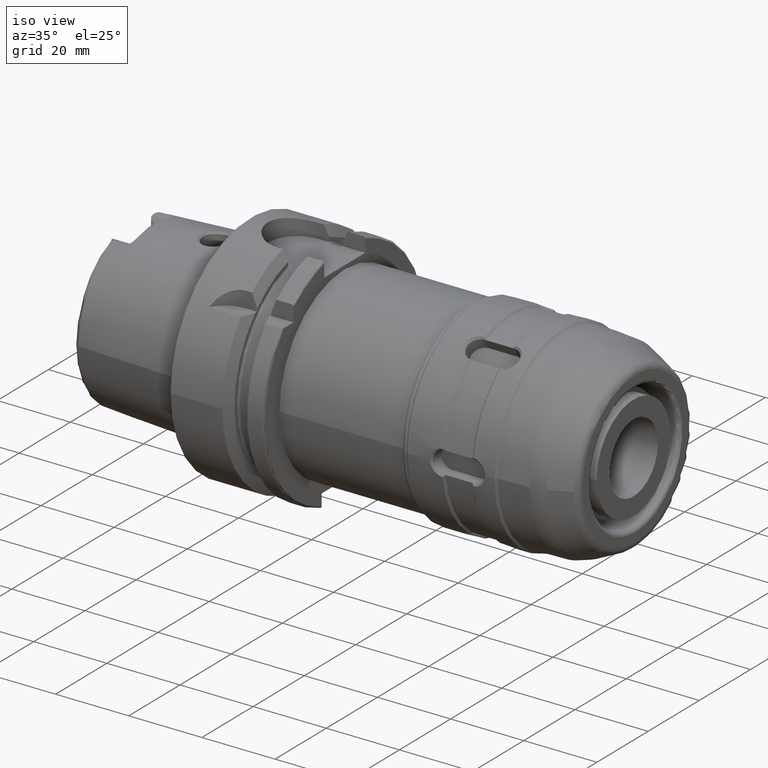
[diagram: clean part render]
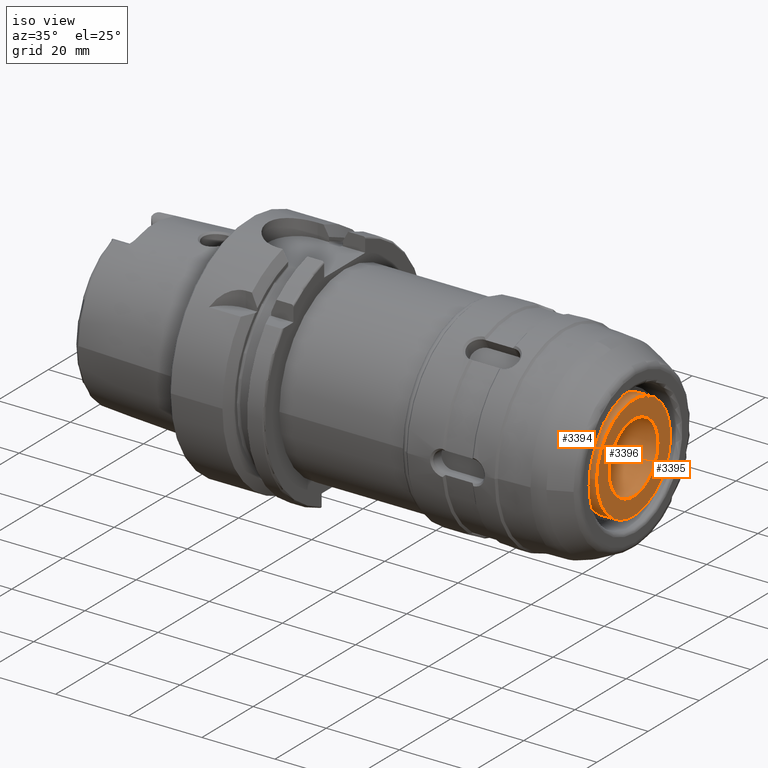
[diagram: same view with one multi-face feature highlighted, each face labeled with its STEP entity id]
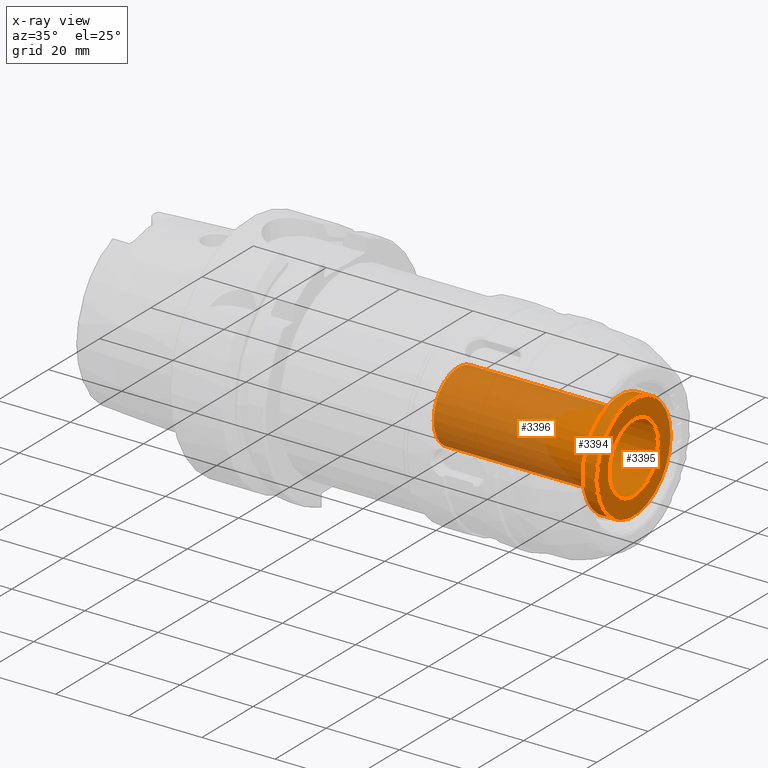
[diagram: x-ray of the same camera — body ghosted, the whole feature saturated]
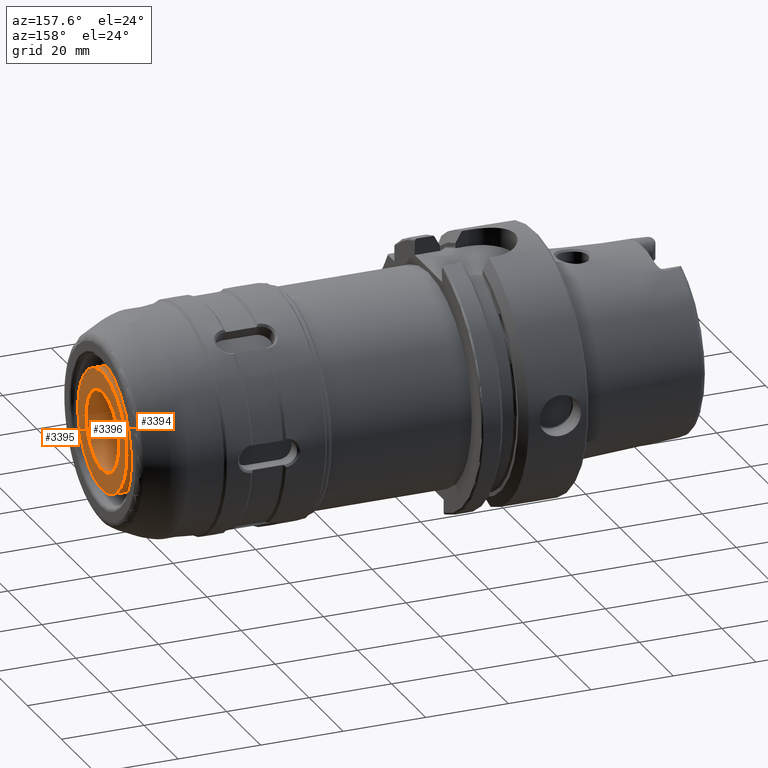
[diagram: same view with one multi-face feature highlighted, each face labeled with its STEP entity id]
A machine part, iso view. The highlighted faces form ONE feature: a stepped (counterbored) hole: 2 coaxial cylindrical walls of radii 9.525 -> 14.45 mm joined by 1 annular planar shoulder face(s). The faces share edges in the B-rep.
The next image is the same camera in x-ray: the body ghosted and the whole hole feature saturated, so the bore chain is visible through the body.
A second angle (auxiliary view) of the same feature is appended — it is thin or edge-on in the first view.
Their STEP definitions:
[1] entity #3394 (Cylinder):
#366=FACE_OUTER_BOUND('',#573,.T.);
#573=EDGE_LOOP('',(#2264,#2265,#2266,#2267));
#792=LINE('',#5073,#973);
#973=VECTOR('',#4106,14.45);
#1158=CIRCLE('',#3681,14.45);
#1159=CIRCLE('',#3683,14.45);
#1353=VERTEX_POINT('',#5068);
#1354=VERTEX_POINT('',#5071);
#1712=EDGE_CURVE('',#1353,#1353,#1158,.T.);
#1713=EDGE_CURVE('',#1354,#1354,#1159,.T.);
#1714=EDGE_CURVE('',#1354,#1353,#792,.T.);
#2264=ORIENTED_EDGE('',*,*,#1713,.F.);
#2265=ORIENTED_EDGE('',*,*,#1714,.T.);
#2266=ORIENTED_EDGE('',*,*,#1712,.T.);
#2267=ORIENTED_EDGE('',*,*,#1714,.F.);
#3329=CYLINDRICAL_SURFACE('',#3682,14.45);
#3394=ADVANCED_FACE('',(#366),#3329,.T.);
#3681=AXIS2_PLACEMENT_3D('',#5069,#4100,#4101);
#3682=AXIS2_PLACEMENT_3D('',#5070,#4102,#4103);
#3683=AXIS2_PLACEMENT_3D('',#5072,#4104,#4105);
#4100=DIRECTION('center_axis',(1.,0.,0.));
#4101=DIRECTION('ref_axis',(0.,0.,-1.));
#4102=DIRECTION('center_axis',(1.,0.,0.));
#4103=DIRECTION('ref_axis',(0.,1.,0.));
#4104=DIRECTION('center_axis',(1.,0.,0.));
#4105=DIRECTION('ref_axis',(0.,0.,-1.));
#4106=DIRECTION('',(-1.,0.,0.));
#5068=CARTESIAN_POINT('',(101.2,-14.45,-1.76961462476793E-15));
#5069=CARTESIAN_POINT('Origin',(101.2,0.,0.));
#5070=CARTESIAN_POINT('Origin',(103.1,0.,0.));
#5071=CARTESIAN_POINT('',(105.,-14.45,-1.76961462476793E-15));
#5072=CARTESIAN_POINT('Origin',(105.,0.,0.));
#5073=CARTESIAN_POINT('',(103.1,-14.45,-1.76961462476793E-15));
[2] entity #3396 (Cylinder):
#368=FACE_OUTER_BOUND('',#576,.T.);
#576=EDGE_LOOP('',(#2270,#2271,#2272,#2273));
#793=LINE('',#5079,#974);
#974=VECTOR('',#4113,9.525);
#1160=CIRCLE('',#3685,9.52500000000001);
#1161=CIRCLE('',#3687,9.525);
#1355=VERTEX_POINT('',#5075);
#1356=VERTEX_POINT('',#5078);
#1715=EDGE_CURVE('',#1355,#1355,#1160,.T.);
#1716=EDGE_CURVE('',#1355,#1356,#793,.T.);
#1717=EDGE_CURVE('',#1356,#1356,#1161,.T.);
#2270=ORIENTED_EDGE('',*,*,#1715,.T.);
#2271=ORIENTED_EDGE('',*,*,#1716,.T.);
#2272=ORIENTED_EDGE('',*,*,#1717,.F.);
#2273=ORIENTED_EDGE('',*,*,#1716,.F.);
#3330=CYLINDRICAL_SURFACE('',#3686,9.525);
#3396=ADVANCED_FACE('',(#368),#3330,.F.);
#3685=AXIS2_PLACEMENT_3D('',#5076,#4109,#4110);
#3686=AXIS2_PLACEMENT_3D('',#5077,#4111,#4112);
#3687=AXIS2_PLACEMENT_3D('',#5080,#4114,#4115);
#4109=DIRECTION('center_axis',(1.,0.,0.));
#4110=DIRECTION('ref_axis',(0.,0.,-1.));
#4111=DIRECTION('center_axis',(1.,0.,0.));
#4112=DIRECTION('ref_axis',(0.,1.,0.));
#4113=DIRECTION('',(-1.,0.,0.));
#4114=DIRECTION('center_axis',(1.,0.,0.));
#4115=DIRECTION('ref_axis',(0.,0.,-1.));
#5075=CARTESIAN_POINT('',(105.,-9.525,-1.16647607618785E-15));
#5076=CARTESIAN_POINT('Origin',(105.,0.,0.));
#5077=CARTESIAN_POINT('Origin',(81.,0.,0.));
#5078=CARTESIAN_POINT('',(57.,-9.525,-1.16647607618785E-15));
#5079=CARTESIAN_POINT('',(81.,-9.525,-1.16647607618785E-15));
#5080=CARTESIAN_POINT('Origin',(57.,0.,0.));
[3] entity #3395 (Plane):
#271=FACE_BOUND('',#575,.T.);
#292=PLANE('',#3684);
#367=FACE_OUTER_BOUND('',#574,.T.);
#574=EDGE_LOOP('',(#2268));
#575=EDGE_LOOP('',(#2269));
#1159=CIRCLE('',#3683,14.45);
#1160=CIRCLE('',#3685,9.52500000000001);
#1354=VERTEX_POINT('',#5071);
#1355=VERTEX_POINT('',#5075);
#1713=EDGE_CURVE('',#1354,#1354,#1159,.T.);
#1715=EDGE_CURVE('',#1355,#1355,#1160,.T.);
#2268=ORIENTED_EDGE('',*,*,#1713,.T.);
#2269=ORIENTED_EDGE('',*,*,#1715,.F.);
#3395=ADVANCED_FACE('',(#367,#271),#292,.T.);
#3683=AXIS2_PLACEMENT_3D('',#5072,#4104,#4105);
#3684=AXIS2_PLACEMENT_3D('',#5074,#4107,#4108);
#3685=AXIS2_PLACEMENT_3D('',#5076,#4109,#4110);
#4104=DIRECTION('center_axis',(1.,0.,0.));
#4105=DIRECTION('ref_axis',(0.,0.,-1.));
#4107=DIRECTION('center_axis',(1.,0.,0.));
#4108=DIRECTION('ref_axis',(0.,0.,-1.));
#4109=DIRECTION('center_axis',(1.,0.,0.));
#4110=DIRECTION('ref_axis',(0.,0.,-1.));
#5071=CARTESIAN_POINT('',(105.,-14.45,-1.76961462476793E-15));
#5072=CARTESIAN_POINT('Origin',(105.,0.,0.));
#5074=CARTESIAN_POINT('Origin',(105.,9.52500000000001,0.));
#5075=CARTESIAN_POINT('',(105.,-9.525,-1.16647607618785E-15));
#5076=CARTESIAN_POINT('Origin',(105.,0.,0.));